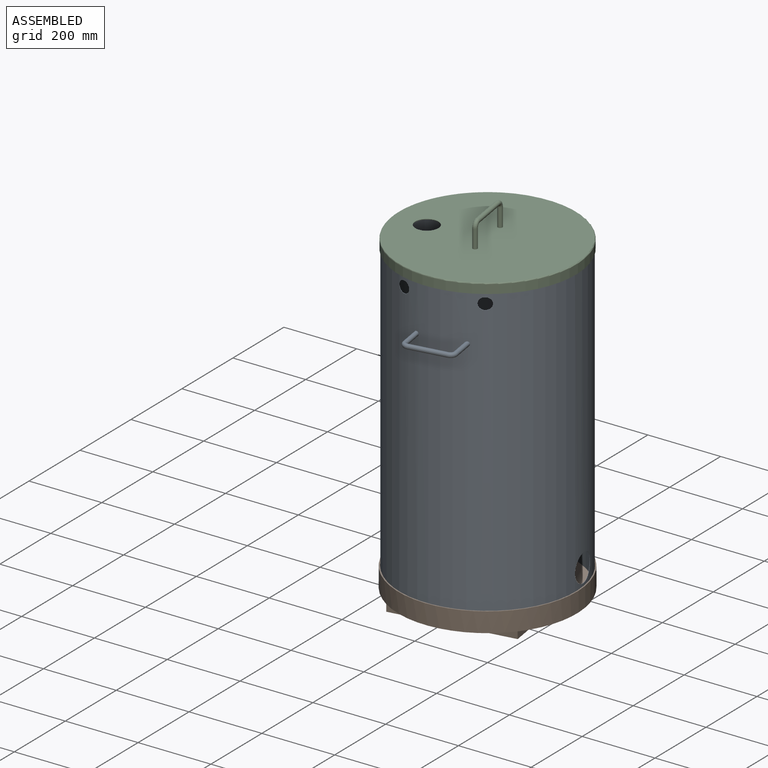
[diagram: assembled view]
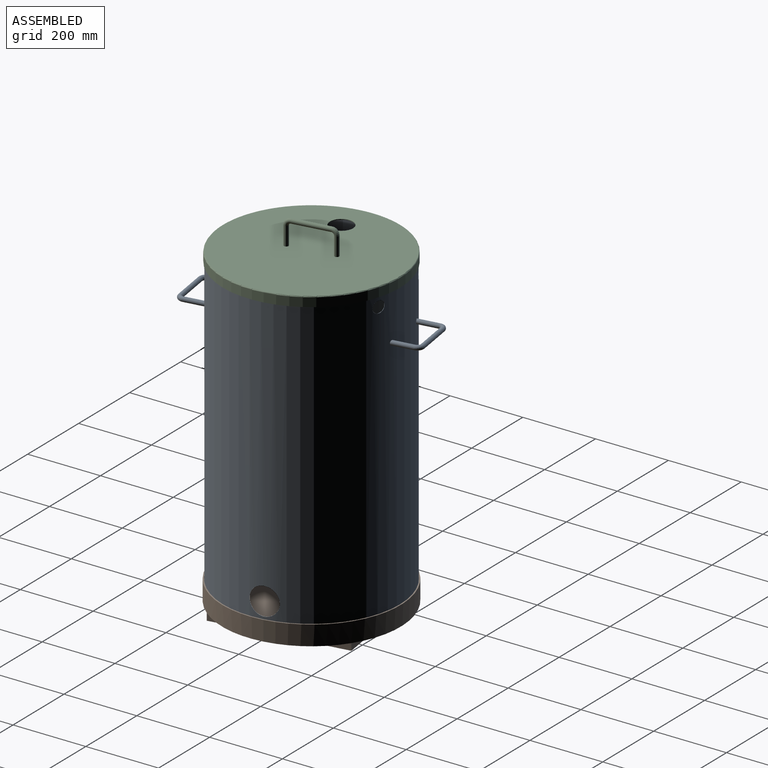
[diagram: assembled view, second angle]
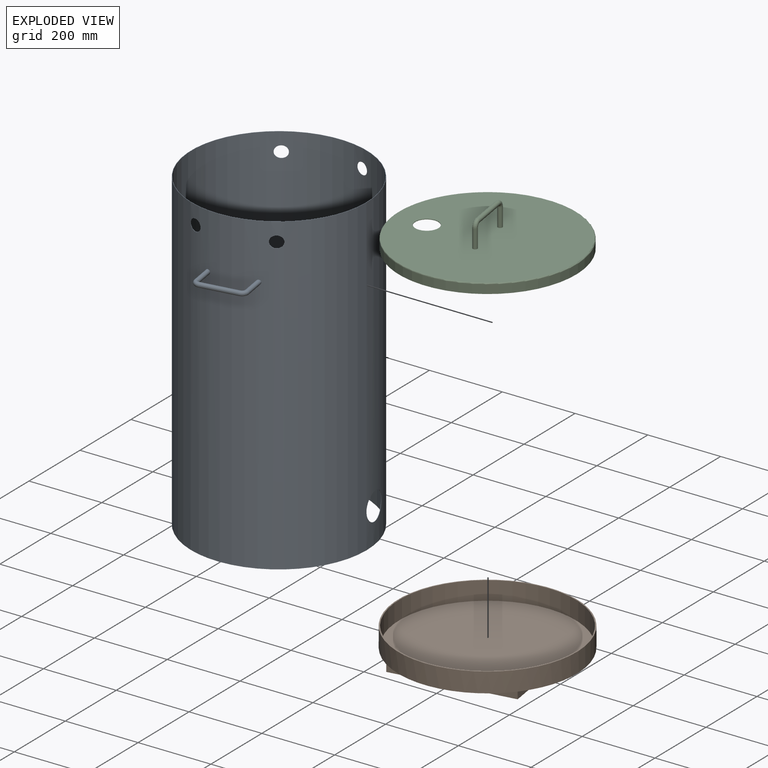
[diagram: exploded view]
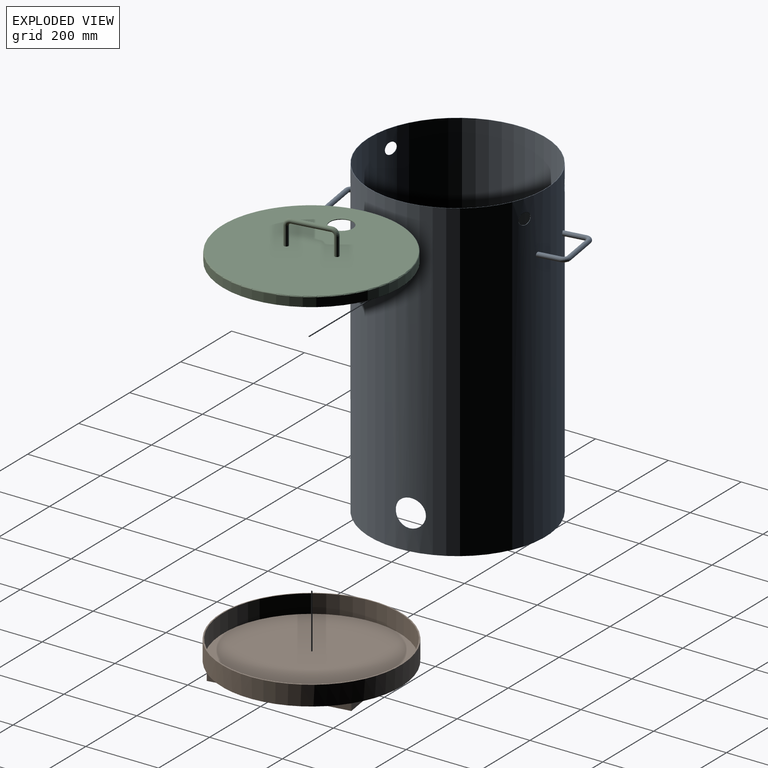
[diagram: exploded view, second angle]
ASSEMBLY  parts=3 mates=4
PART A: 19 faces, bbox 482.6x863.6x623.6 mm
  f0: cylinder r=240.4mm len=863.6mm, axis (0,1,0), area 1296379.5mm2, adj f2,f3,f4,f5,f6,f7,f8
  f1: cylinder r=241.3mm len=863.6mm, axis (0,1,0), area 1300727.4mm2, adj f2,f3,f4,f5,f6,f7,f8,f10
  f2: plane 482.6x482.6mm, normal (0,-1,0), area 1362mm2, adj f0,f1
  f3: plane 482.6x482.6mm, normal (0,1,0), area 1362mm2, adj f0,f1
  f4: cylinder r=38.1mm len=76.2mm, axis (-1,0,0), area 216.8mm2, adj f0,f1
  f5: cylinder r=15.88mm len=31.75mm, axis (0,0,1), area 99.2mm2, adj f0,f1
  f6: cylinder r=15.88mm len=31.75mm, axis (0,0,1), area 99.2mm2, adj f0,f1
  f7: cylinder r=15.88mm len=31.75mm, axis (0,0,1), area 99.2mm2, adj f0,f1
  f8: cylinder r=15.88mm len=31.75mm, axis (0,0,1), area 99.2mm2, adj f0,f1
  f9: torus R=12.7mm, axis (0,1,0), area 795.9mm2, adj f10,f11
  f10: cylinder r=6.35mm len=60.23mm, axis (0,0,-1), area 2332.1mm2, adj f1,f9
  f11: cylinder r=6.35mm len=101.6mm, axis (1,0,0), area 4053.7mm2, adj f9,f12
  f12: torus R=12.7mm, axis (0,1,0), area 795.9mm2, adj f11,f13
  f13: cylinder r=6.35mm len=60.23mm, axis (0,0,1), area 2332.1mm2, adj f1,f12
  f14: torus R=12.7mm, axis (0,1,0), area 795.9mm2, adj f15,f18
  f15: cylinder r=6.35mm len=101.6mm, axis (-1,0,0), area 4053.7mm2, adj f14,f16
  f16: torus R=12.7mm, axis (0,1,0), area 795.9mm2, adj f15,f17
  f17: cylinder r=6.35mm len=60.23mm, axis (0,0,1), area 2332.1mm2, adj f1,f16
  f18: cylinder r=6.35mm len=60.23mm, axis (0,0,-1), area 2332.1mm2, adj f1,f14
PART B: 18 faces, bbox 490.2x490.2x73 mm
  f0: plane 329.78x63.76mm, normal (0,0,-1), area 14427.6mm2, adj f4,f11
  f1: plane 362.71x80.22mm, normal (0,0,-1), area 20136.2mm2, adj f4,f14
  f2: plane 362.71x80.22mm, normal (0,0,-1), area 20136.2mm2, adj f4,f12
  f3: plane 329.78x63.76mm, normal (0,0,-1), area 14427.6mm2, adj f4,f13
  f4: cylinder r=245.11mm len=490.22mm, axis (0,0,-1), area 83125.4mm2, adj f0,f1,f2,f3,f6
  f5: cylinder r=241.94mm len=483.87mm, axis (0,0,-1), area 77222.2mm2, adj f6,f7
  f6: plane 490.22x490.22mm, normal (0,0,1), area 4858.1mm2, adj f4,f5
  f7: plane 483.87x483.87mm, normal (0,0,1), area 183885.4mm2, adj f5
  f8: plane 317.08x19.05mm, normal (0,-1,0), area 6040.5mm2, adj f9,f15,f16,f17
  f9: plane 350.01x19.05mm, normal (1,0,0), area 6667.7mm2, adj f8,f10,f16,f17
  f10: plane 317.08x19.05mm, normal (0,1,0), area 6040.5mm2, adj f9,f15,f16,f17
  f11: plane 329.78x19.05mm, normal (0,1,0), area 6282.4mm2, adj f0,f12,f14,f16
  f12: plane 362.71x19.05mm, normal (1,0,0), area 6909.6mm2, adj f2,f11,f13,f16
  f13: plane 329.78x19.05mm, normal (0,-1,0), area 6282.4mm2, adj f3,f12,f14,f16
  f14: plane 362.71x19.05mm, normal (-1,0,0), area 6909.6mm2, adj f1,f11,f13,f16
  f15: plane 350.01x19.05mm, normal (-1,0,0), area 6667.7mm2, adj f8,f10,f16,f17
  f16: plane 362.71x329.78mm, normal (0,0,-1), area 8633.4mm2, adj f8,f9,f10,f11,f12,f13,f14,f15
  f17: plane 350.01x317.08mm, normal (0,0,-1), area 110982.4mm2, adj f8,f9,f10,f15
PART C: 12 faces, bbox 527.2x527.2x98.4 mm
  f0: plane 481.97x481.97mm, normal (0,0,1), area 179020.1mm2, adj f5,f9,f10,f11
  f1: cylinder r=241.94mm len=483.87mm, axis (0,0,-1), area 38611.1mm2, adj f3,f4
  f2: cylinder r=243.52mm len=487.05mm, axis (0,0,-1), area 37407mm2, adj f3,f11
  f3: plane 487.05x487.05mm, normal (0,0,-1), area 2421.1mm2, adj f1,f2
  f4: plane 483.87x483.87mm, normal (0,0,-1), area 180718.5mm2, adj f1,f10
  f5: cylinder r=6.35mm len=50.8mm, axis (0,0,1), area 2026.8mm2, adj f0,f6
  f6: torus R=12.7mm, axis (1,0,0), area 795.9mm2, adj f5,f7
  f7: cylinder r=6.35mm len=101.6mm, axis (0,-1,0), area 4053.7mm2, adj f6,f8
  f8: torus R=12.7mm, axis (1,0,0), area 795.9mm2, adj f7,f9
  f9: cylinder r=6.35mm len=50.8mm, axis (0,0,-1), area 2026.8mm2, adj f0,f8
  f10: cylinder r=31.75mm len=63.5mm, axis (0,0,1), area 316.7mm2, adj f0,f4
  f11: torus R=240.98mm, axis (0,0,1), area 6081.7mm2, adj f0,f2
PLACE A rot(axis=(-0.99,-0.08,0.08),90.3deg) t=(0,0,3.17)mm
PLACE B rot(axis=(0,0,1),8.8deg) t=(0,0,0)mm fixed
PLACE C rot(axis=(0,0,1),8.8deg) t=(0,0,841.38)mm
MATE planar A.f0 <-> B.f5  axis (0,0,-1) through (0,0,3.17)mm
MATE slider C.f1 <-> A.f1  axis (0,0,-1) through (0,0,866.78)mm
MATE planar C.f1 <-> A.f1  axis (0,0,-1) through (0,0,866.78)mm
MATE slider A.f0 <-> B.f5  axis (0,0,-1) through (0,0,3.17)mm
